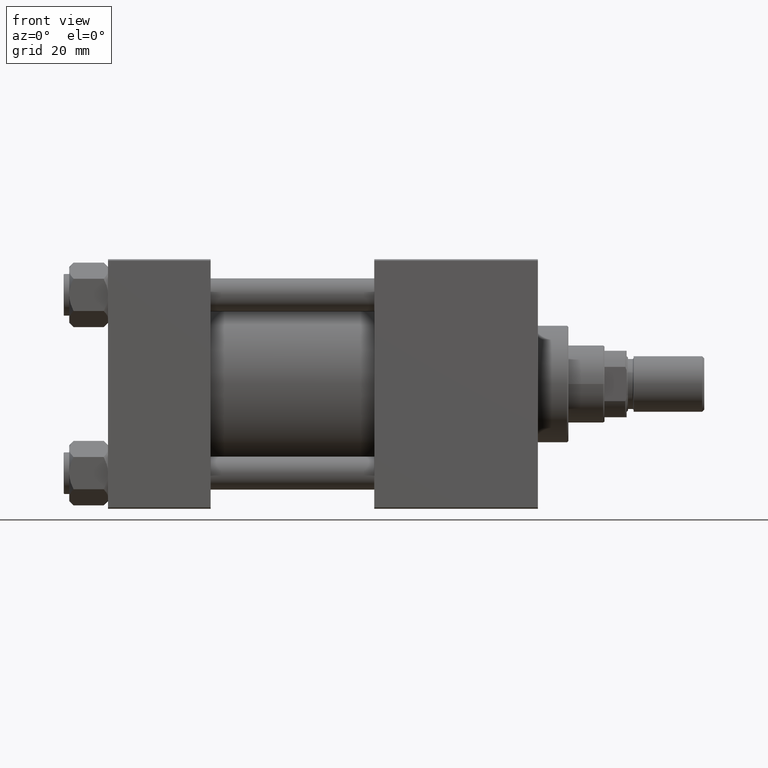
[diagram: clean part render]
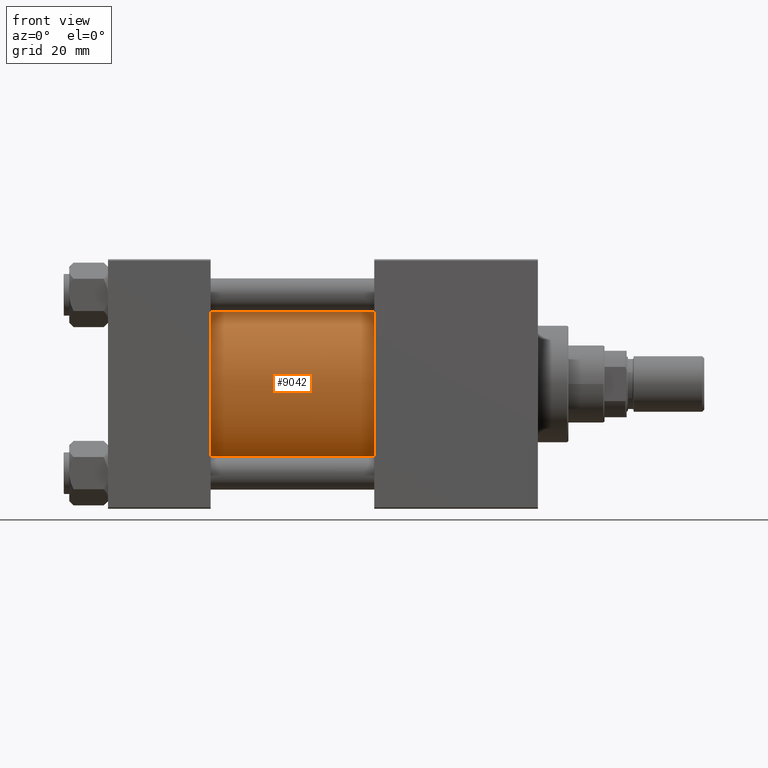
[diagram: same view with one face highlighted and labeled with its STEP entity id]
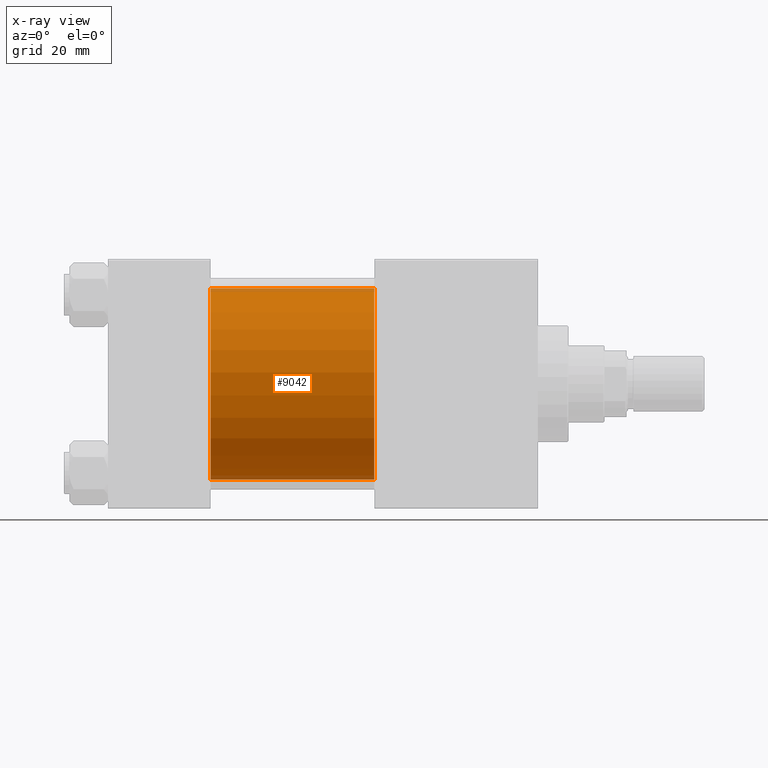
[diagram: x-ray of the same camera — body ghosted, the highlighted face saturated]
A machine part, front view. The second image highlights one B-rep face of the part: STEP entity #9042.
The next image is the same camera in x-ray: the body ghosted, the highlighted face saturated — about 4% of this face is hidden behind the body in this view.
In plain terms, the highlighted cylindrical surface (partial cylindrical patch) has radius 34.5 mm, axis along (-1, -0, -0).
Its self-contained STEP definition (entity closure, byte-faithful):
#1243 = EDGE_CURVE ( 'NONE', #8235, #27881, #4574, .T. ) ;
#1657 = CARTESIAN_POINT ( 'NONE',  ( 96.00000000000000000, 1.622946243093158675E-15, -34.50000000000000000 ) ) ;
#2651 = VECTOR ( 'NONE', #43825, 1000.000000000000000 ) ;
#4574 = LINE ( 'NONE', #42766, #50712 ) ;
#5029 = CARTESIAN_POINT ( 'NONE',  ( 37.00000000000000000, -2.602085213965210642E-15, 0.000000000000000000 ) ) ;
#6857 = CIRCLE ( 'NONE', #11769, 34.50000000000000000 ) ;
#8235 = VERTEX_POINT ( 'NONE', #1657 ) ;
#9042 = ADVANCED_FACE ( 'NONE', ( #34959 ), #18315, .T. ) ;
#9126 = DIRECTION ( 'NONE',  ( 0.000000000000000000, 0.000000000000000000, 1.000000000000000000 ) ) ;
#10341 = VERTEX_POINT ( 'NONE', #34290 ) ;
#11022 = CARTESIAN_POINT ( 'NONE',  ( 37.00000000000000000, 1.622946243093158675E-15, -34.50000000000000000 ) ) ;
#11715 = EDGE_LOOP ( 'NONE', ( #47567, #30322, #13200, #35093 ) ) ;
#11769 = AXIS2_PLACEMENT_3D ( 'NONE', #5029, #20653, #9126 ) ;
#13200 = ORIENTED_EDGE ( 'NONE', *, *, #41697, .T. ) ;
#16930 = DIRECTION ( 'NONE',  ( 1.000000000000000000, 0.000000000000000000, 0.000000000000000000 ) ) ;
#17296 = VERTEX_POINT ( 'NONE', #41849 ) ;
#18315 = CYLINDRICAL_SURFACE ( 'NONE', #43545, 34.50000000000000000 ) ;
#20653 = DIRECTION ( 'NONE',  ( 1.000000000000000000, -0.000000000000000000, 0.000000000000000000 ) ) ;
#22893 = CARTESIAN_POINT ( 'NONE',  ( 96.00000000000000000, -2.602085213965210642E-15, 0.000000000000000000 ) ) ;
#27410 = LINE ( 'NONE', #35636, #2651 ) ;
#27575 = EDGE_CURVE ( 'NONE', #17296, #8235, #35042, .T. ) ;
#27881 = VERTEX_POINT ( 'NONE', #11022 ) ;
#30322 = ORIENTED_EDGE ( 'NONE', *, *, #27575, .F. ) ;
#31230 = DIRECTION ( 'NONE',  ( -1.000000000000000000, -0.000000000000000000, -0.000000000000000000 ) ) ;
#34290 = CARTESIAN_POINT ( 'NONE',  ( 37.00000000000000000, -2.602085213965210642E-15, 34.50000000000000000 ) ) ;
#34959 = FACE_OUTER_BOUND ( 'NONE', #11715, .T. ) ;
#35042 = CIRCLE ( 'NONE', #43238, 34.50000000000000000 ) ;
#35093 = ORIENTED_EDGE ( 'NONE', *, *, #48562, .T. ) ;
#35636 = CARTESIAN_POINT ( 'NONE',  ( 96.00000000000000000, -2.602085213965210642E-15, 34.50000000000000000 ) ) ;
#36435 = CARTESIAN_POINT ( 'NONE',  ( 96.00000000000000000, -2.602085213965210642E-15, 0.000000000000000000 ) ) ;
#41697 = EDGE_CURVE ( 'NONE', #17296, #10341, #27410, .T. ) ;
#41849 = CARTESIAN_POINT ( 'NONE',  ( 96.00000000000000000, -2.602085213965210642E-15, 34.50000000000000000 ) ) ;
#41887 = DIRECTION ( 'NONE',  ( 0.000000000000000000, 0.000000000000000000, 1.000000000000000000 ) ) ;
#42766 = CARTESIAN_POINT ( 'NONE',  ( 96.00000000000000000, 1.622946243093158675E-15, -34.50000000000000000 ) ) ;
#43238 = AXIS2_PLACEMENT_3D ( 'NONE', #36435, #16930, #48198 ) ;
#43545 = AXIS2_PLACEMENT_3D ( 'NONE', #22893, #46734, #41887 ) ;
#43825 = DIRECTION ( 'NONE',  ( -1.000000000000000000, -0.000000000000000000, -0.000000000000000000 ) ) ;
#46734 = DIRECTION ( 'NONE',  ( -1.000000000000000000, -0.000000000000000000, -0.000000000000000000 ) ) ;
#47567 = ORIENTED_EDGE ( 'NONE', *, *, #1243, .F. ) ;
#48198 = DIRECTION ( 'NONE',  ( 0.000000000000000000, 0.000000000000000000, -1.000000000000000000 ) ) ;
#48562 = EDGE_CURVE ( 'NONE', #10341, #27881, #6857, .T. ) ;
#50712 = VECTOR ( 'NONE', #31230, 1000.000000000000000 ) ;